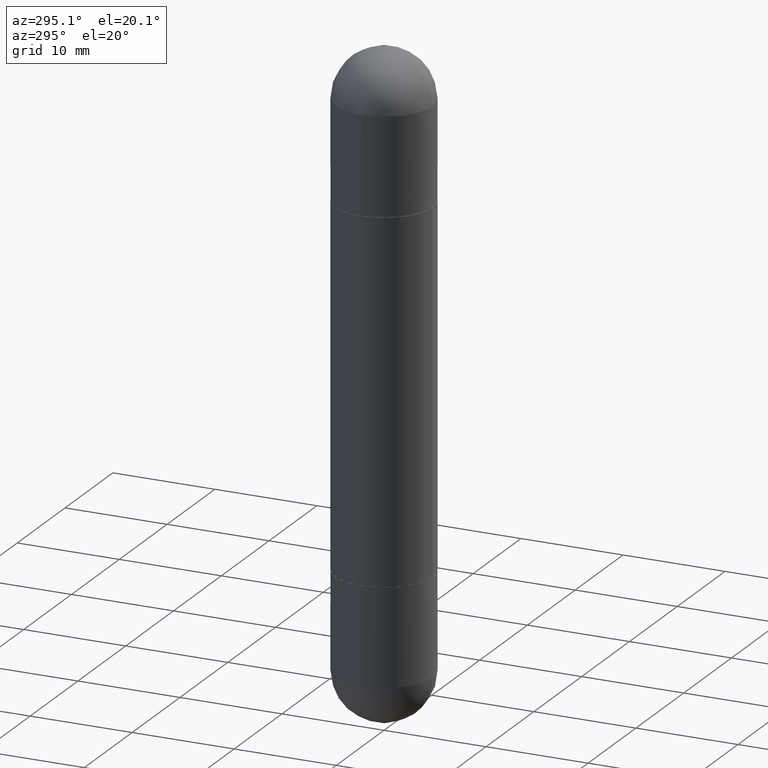
[diagram: clean part render]
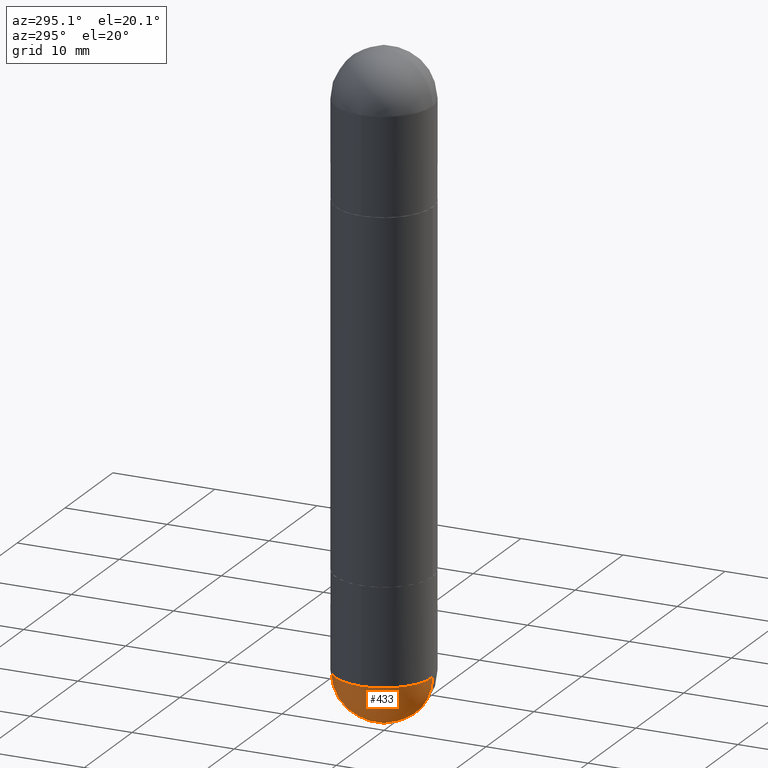
[diagram: same view with one face highlighted and labeled with its STEP entity id]
A machine part, auxiliary view. The second image highlights one B-rep face of the part: STEP entity #433.
In plain terms, the highlighted spherical surface has radius 4.7625 mm.
Its self-contained STEP definition (entity closure, byte-faithful):
#9 = CARTESIAN_POINT ( 'NONE',  ( -0.1875000000000000555, -6.088003085826207710E-15, -2.312500000000000000 ) ) ;
#26 = EDGE_CURVE ( 'NONE', #746, #62, #332, .T. ) ;
#53 = CARTESIAN_POINT ( 'NONE',  ( 5.324026836389243254E-29, -8.548232964214825368E-15, -2.312500000000000000 ) ) ;
#60 = CIRCLE ( 'NONE', #653, 0.1875000000000000555 ) ;
#62 = VERTEX_POINT ( 'NONE', #461 ) ;
#65 = EDGE_LOOP ( 'NONE', ( #791, #217, #541, #731 ) ) ;
#115 = FACE_OUTER_BOUND ( 'NONE', #65, .T. ) ;
#123 = DIRECTION ( 'NONE',  ( -1.000000000000000000, 6.982962677686266711E-15, -4.883557194083113462E-29 ) ) ;
#135 = VERTEX_POINT ( 'NONE', #659 ) ;
#142 = DIRECTION ( 'NONE',  ( -7.105427357600999492E-15, -1.000000000000000000, 0.000000000000000000 ) ) ;
#174 = CARTESIAN_POINT ( 'NONE',  ( 5.655146614303128380E-29, -8.074050596074775072E-15, -2.312500000000000000 ) ) ;
#178 = CIRCLE ( 'NONE', #497, 0.1875000000000000555 ) ;
#217 = ORIENTED_EDGE ( 'NONE', *, *, #26, .T. ) ;
#247 = AXIS2_PLACEMENT_3D ( 'NONE', #511, #648, #142 ) ;
#252 = DIRECTION ( 'NONE',  ( 6.982962677686265922E-15, 1.000000000000000000, 0.000000000000000000 ) ) ;
#270 = VERTEX_POINT ( 'NONE', #9 ) ;
#301 = CARTESIAN_POINT ( 'NONE',  ( 5.790569421510013204E-29, -9.191404651505909607E-15, -2.500000000000000000 ) ) ;
#315 = CARTESIAN_POINT ( 'NONE',  ( 5.324026836389243254E-29, -8.548232964214825368E-15, -2.312500000000000000 ) ) ;
#317 = CARTESIAN_POINT ( 'NONE',  ( 5.655146614303128380E-29, -8.074050596074775072E-15, -2.312500000000000000 ) ) ;
#332 = CIRCLE ( 'NONE', #247, 0.1875000000000003331 ) ;
#421 = DIRECTION ( 'NONE',  ( -2.445468806185136597E-29, 3.491481338843145583E-15, 1.000000000000000000 ) ) ;
#422 = CIRCLE ( 'NONE', #520, 0.1875000000000003331 ) ;
#429 = EDGE_CURVE ( 'NONE', #746, #135, #422, .T. ) ;
#433 = ADVANCED_FACE ( 'NONE', ( #115 ), #687, .T. ) ;
#435 = DIRECTION ( 'NONE',  ( 1.000000000000000000, -6.982962677686270655E-15, 0.000000000000000000 ) ) ;
#461 = CARTESIAN_POINT ( 'NONE',  ( -1.332267629550134009E-15, -0.1875000000000084932, -2.312499999999999556 ) ) ;
#497 = AXIS2_PLACEMENT_3D ( 'NONE', #317, #626, #563 ) ;
#500 = DIRECTION ( 'NONE',  ( 6.982962677686266711E-15, 1.000000000000000000, -2.913971193241875639E-15 ) ) ;
#511 = CARTESIAN_POINT ( 'NONE',  ( 5.324026836389243254E-29, -8.548232964214825368E-15, -2.312500000000000000 ) ) ;
#519 = EDGE_CURVE ( 'NONE', #135, #270, #178, .T. ) ;
#520 = AXIS2_PLACEMENT_3D ( 'NONE', #53, #691, #252 ) ;
#541 = ORIENTED_EDGE ( 'NONE', *, *, #738, .F. ) ;
#563 = DIRECTION ( 'NONE',  ( 1.000000000000000000, -6.982962677686270655E-15, 0.000000000000000000 ) ) ;
#626 = DIRECTION ( 'NONE',  ( -2.445468806185136597E-29, 3.491481338843145583E-15, 1.000000000000000000 ) ) ;
#629 = AXIS2_PLACEMENT_3D ( 'NONE', #315, #123, #500 ) ;
#648 = DIRECTION ( 'NONE',  ( -1.000000000000000000, 7.105427357601001070E-15, -4.926315508542082329E-29 ) ) ;
#653 = AXIS2_PLACEMENT_3D ( 'NONE', #174, #421, #435 ) ;
#659 = CARTESIAN_POINT ( 'NONE',  ( 1.309305502066231017E-15, 0.1874999999999918954, -2.312500000000000444 ) ) ;
#687 = SPHERICAL_SURFACE ( 'NONE', #629, 0.1875000000000003331 ) ;
#691 = DIRECTION ( 'NONE',  ( 1.000000000000000000, -6.982962677686265922E-15, 4.883557194083112340E-29 ) ) ;
#731 = ORIENTED_EDGE ( 'NONE', *, *, #519, .F. ) ;
#738 = EDGE_CURVE ( 'NONE', #270, #62, #60, .T. ) ;
#746 = VERTEX_POINT ( 'NONE', #301 ) ;
#791 = ORIENTED_EDGE ( 'NONE', *, *, #429, .F. ) ;